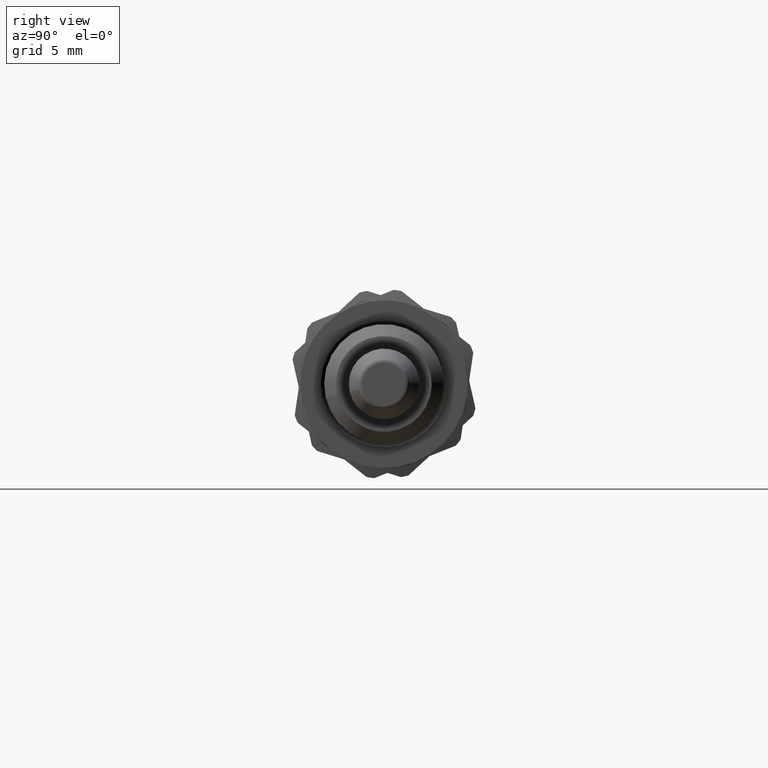
[diagram: clean part render]
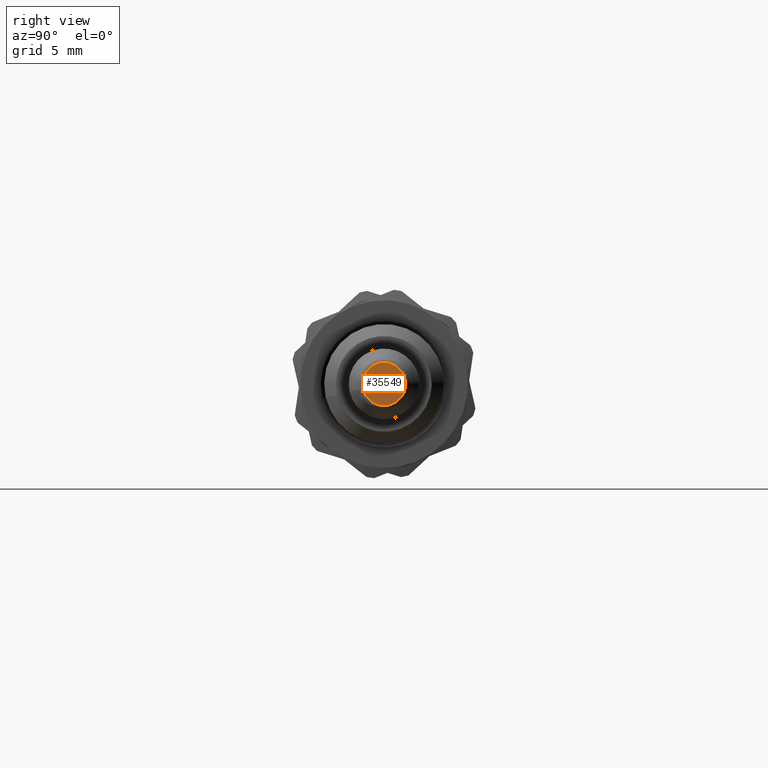
[diagram: same view with one face highlighted and labeled with its STEP entity id]
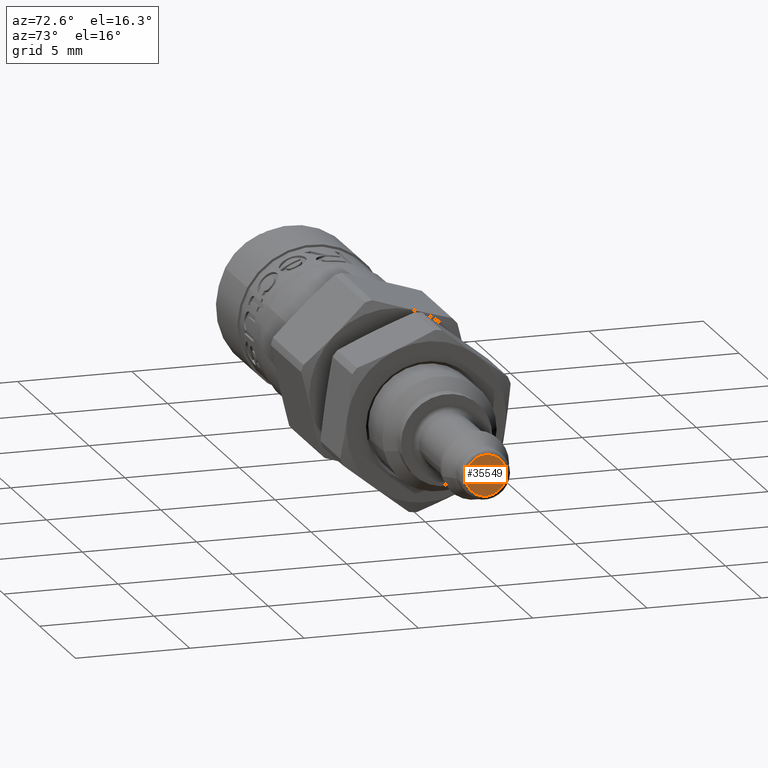
[diagram: same view with one face highlighted and labeled with its STEP entity id]
A machine part, right view. The second image highlights one B-rep face of the part: STEP entity #35549.
A second angle (auxiliary view) of the same face is appended — the face is thin or edge-on in the first view.
In plain terms, the highlighted planar face has unit normal (1, 0, 0).
Its self-contained STEP definition (entity closure, byte-faithful):
#35498=CARTESIAN_POINT('',(28.499999999999996,-0.87798972853378,-0.197823245826114));
#35499=VERTEX_POINT('',#35498);
#35500=CARTESIAN_POINT('',(28.499999999999996,0.0,0.0));
#35501=DIRECTION('',(-1.0,0.0,0.0));
#35502=DIRECTION('',(0.0,0.975544142815311,0.21980360647346));
#35503=AXIS2_PLACEMENT_3D('',#35500,#35501,#35502);
#35504=CIRCLE('',#35503,0.9);
#35505=EDGE_CURVE('',#35499,#35499,#35504,.T.);
#35541=CARTESIAN_POINT('',(28.499999999999996,-0.902378332104162,-0.20331833598795));
#35542=DIRECTION('',(1.0,0.0,0.0));
#35543=DIRECTION('',(0.0,-0.21980360647346,0.975544142815311));
#35544=AXIS2_PLACEMENT_3D('',#35541,#35542,#35543);
#35545=PLANE('',#35544);
#35546=ORIENTED_EDGE('',*,*,#35505,.F.);
#35547=EDGE_LOOP('',(#35546));
#35548=FACE_OUTER_BOUND('',#35547,.T.);
#35549=ADVANCED_FACE('',(#35548),#35545,.T.);